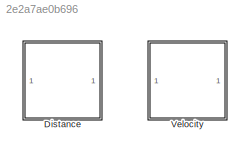
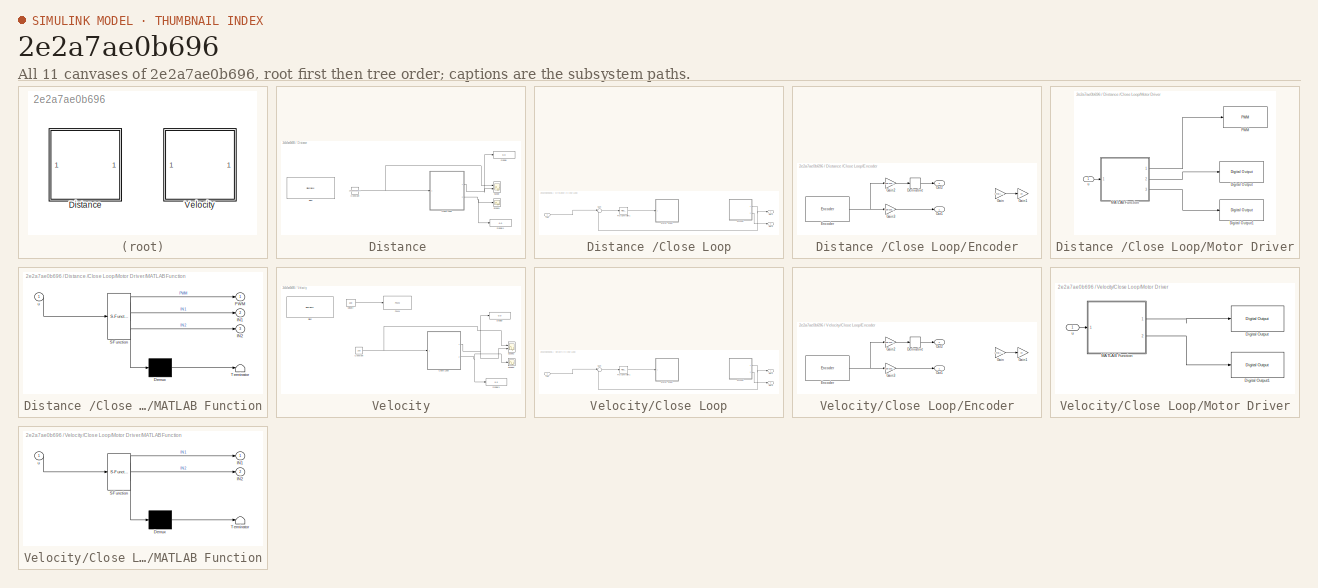
[diagram: thumbnail index - all 11 canvases of the model, root first then tree order]
MODEL slx_2e2a7ae0b696
KIND model
CONFIG AbsTol = auto
CONFIG EnableMultiTasking = on
CONFIG FixedStep = auto
CONFIG MaxStep = auto
CONFIG MinStep = auto
CONFIG RelTol = 1e-3
CONFIG SampleTimeConstraint = Unconstrained
CONFIG SolverName = FixedStepAuto
CONFIG StartTime = 0.0
CONFIG StopTime = 5
BLOCK [SubSystem] Distance 
  Ports = []
BLOCK [SubSystem] Distance /Close Loop
  Ports = [1, 2]
BLOCK [SubSystem] Distance /Close Loop/Encoder
  Ports = [0, 2]
BLOCK [Derivative] Distance /Close Loop/Encoder/Derivative
BLOCK [Reference] Distance /Close Loop/Encoder/Encoder  REF=arduinosensorlib/Encoder
  Ports = [0, 1]
  SourceBlock = arduinosensorlib/Encoder
  SourceType = Arduino Rotary Encoder
BLOCK [Gain] Distance /Close Loop/Encoder/Gain
  Commented = on
  Gain = (2*pi)/20
BLOCK [Gain] Distance /Close Loop/Encoder/Gain1
  Commented = on
  Gain = 34
BLOCK [Gain] Distance /Close Loop/Encoder/Gain2
  Gain = 228/103100000
  LockScale = on
  OutDataTypeStr = double
BLOCK [Gain] Distance /Close Loop/Encoder/Gain3
  Gain = 228/103100
BLOCK [Outport] Distance /Close Loop/Encoder/Out1
BLOCK [Outport] Distance /Close Loop/Encoder/Out2
  Port = 2
BLOCK [Inport] Distance /Close Loop/In1
BLOCK [SubSystem] Distance /Close Loop/Motor Driver
  Ports = [1]
BLOCK [Reference] Distance /Close Loop/Motor Driver/Digital Output  REF=arduinolib/Digital Output
  Ports = [1]
  SourceBlock = arduinolib/Digital Output
  SourceType = Arduino Digital Output
BLOCK [Reference] Distance /Close Loop/Motor Driver/Digital Output1  REF=arduinolib/Digital Output
  Ports = [1]
  SourceBlock = arduinolib/Digital Output
  SourceType = Arduino Digital Output
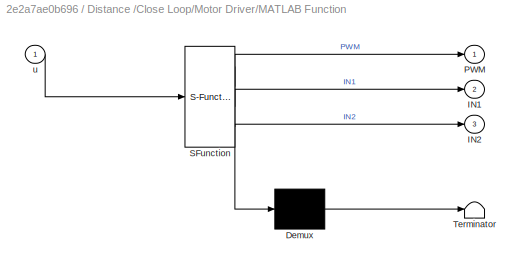
BLOCK [SubSystem] Distance /Close Loop/Motor Driver/MATLAB Function
  ErrorFcn = Stateflow.Translate.translate
  PermitHierarchicalResolution = ExplicitOnly
  Ports = [1, 3]
  SFBlockType = MATLAB Function
  TreatAsAtomicUnit = on
BLOCK [Demux] Distance /Close Loop/Motor Driver/MATLAB Function/ Demux 
  Outputs = 1
  Ports = [1, 1]
BLOCK [S-Function] Distance /Close Loop/Motor Driver/MATLAB Function/ SFunction 
  EnableBusSupport = on
  FunctionName = sf_sfun
  PortCounts = [1 4]
  Ports = [1, 4]
  SFcnIsStateOwnerBlock = off
  SFunctionDeploymentMode = off
  Tag = Stateflow S-Function 2
BLOCK [Terminator] Distance /Close Loop/Motor Driver/MATLAB Function/ Terminator 
BLOCK [Outport] Distance /Close Loop/Motor Driver/MATLAB Function/IN1
  Port = 2
BLOCK [Outport] Distance /Close Loop/Motor Driver/MATLAB Function/IN2
  Port = 3
BLOCK [Outport] Distance /Close Loop/Motor Driver/MATLAB Function/PWM
BLOCK [Inport] Distance /Close Loop/Motor Driver/MATLAB Function/u
BLOCK [Reference] Distance /Close Loop/Motor Driver/PWM  REF=arduinolib/PWM
  Ports = [1]
  SourceBlock = arduinolib/PWM
  SourceType = Arduino PWM
BLOCK [Inport] Distance /Close Loop/Motor Driver/u
BLOCK [Outport] Distance /Close Loop/Out1
BLOCK [Outport] Distance /Close Loop/Out2
  Port = 2
BLOCK [Reference] Distance /Close Loop/PID Controller1  REF=slpidlib/PID Controller
  Ports = [1, 1]
  SourceBlock = slpidlib/PID Controller
  SourceType = PID 1dof
BLOCK [Sum] Distance /Close Loop/Sum
  Inputs = |+-
  Ports = [2, 1]
BLOCK [Constant] Distance /Constant
  Value = 197.8655864122212
BLOCK [Display] Distance /Display
  Decimation = 1
  Ports = [1]
BLOCK [Display] Distance /Display1
  Decimation = 1
  Ports = [1]
BLOCK [Scope] Distance /Scope
  Floating = off
  NumInputPorts = 2
  Ports = [2]
  ScopeSpecificationString = Simulink.scopes.TimeScopeBlockCfg('CurrentConfiguration', extmgr.ConfigurationSet(extmgr.Configuration('Core','General UI',true,'FigureColor',[1 1 1]),extmgr.Configuration('Core','Source UI',true),extmgr.Configuration('Sources','WiredSimulink',true,'DataLoggingVariableName','scora1','DataLogging',true,'DataLoggingSaveFormat','StructureWithTime'),extmgr.Configuration('Visuals','Time Domain',true,'S...<+1891ch>
BLOCK [Scope] Distance /Scope1
  Floating = off
  NumInputPorts = 1
  Ports = [1]
  ScopeSpecificationString = Simulink.scopes.TimeScopeBlockCfg('CurrentConfiguration', extmgr.ConfigurationSet(extmgr.Configuration('Core','General UI',true,'FigureColor',[1 1 1]),extmgr.Configuration('Core','Source UI',true),extmgr.Configuration('Sources','WiredSimulink',true,'DataLoggingVariableName','ScopeData1'),extmgr.Configuration('Visuals','Time Domain',true,'SerializedDisplays',{struct('MinYLimReal','-0.01216','MaxYLi...<+1643ch>
BLOCK [SliderBlock] Distance /Slider
  ScaleMax = 228
BLOCK [SubSystem] Velocity
  Commented = on
  Ports = []
BLOCK [SubSystem] Velocity/Close Loop
  Ports = [1, 2]
BLOCK [SubSystem] Velocity/Close Loop/Encoder
  Ports = [0, 2]
BLOCK [Derivative] Velocity/Close Loop/Encoder/Derivative
BLOCK [Reference] Velocity/Close Loop/Encoder/Encoder  REF=arduinosensorlib/Encoder
  Ports = [0, 1]
  SourceBlock = arduinosensorlib/Encoder
  SourceType = Arduino Rotary Encoder
BLOCK [Gain] Velocity/Close Loop/Encoder/Gain
  Commented = on
  Gain = (2*pi)/20
BLOCK [Gain] Velocity/Close Loop/Encoder/Gain1
  Commented = on
  Gain = 34
BLOCK [Gain] Velocity/Close Loop/Encoder/Gain2
  Gain = 228/103100000
  LockScale = on
  OutDataTypeStr = double
BLOCK [Gain] Velocity/Close Loop/Encoder/Gain3
  Gain = 228/103100
BLOCK [Outport] Velocity/Close Loop/Encoder/Out1
BLOCK [Outport] Velocity/Close Loop/Encoder/Out2
  Port = 2
BLOCK [Inport] Velocity/Close Loop/In1
BLOCK [SubSystem] Velocity/Close Loop/Motor Driver
  Ports = [1]
BLOCK [Reference] Velocity/Close Loop/Motor Driver/Digital Output  REF=arduinolib/Digital Output
  Ports = [1]
  SourceBlock = arduinolib/Digital Output
  SourceType = Arduino Digital Output
BLOCK [Reference] Velocity/Close Loop/Motor Driver/Digital Output1  REF=arduinolib/Digital Output
  Ports = [1]
  SourceBlock = arduinolib/Digital Output
  SourceType = Arduino Digital Output
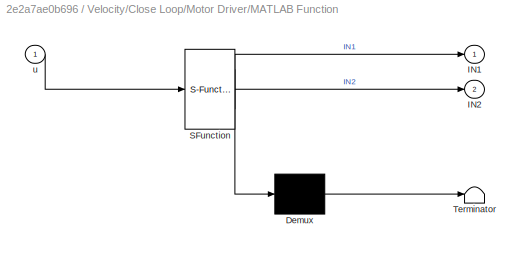
BLOCK [SubSystem] Velocity/Close Loop/Motor Driver/MATLAB Function
  ErrorFcn = Stateflow.Translate.translate
  PermitHierarchicalResolution = ExplicitOnly
  Ports = [1, 2]
  SFBlockType = MATLAB Function
  TreatAsAtomicUnit = on
BLOCK [Demux] Velocity/Close Loop/Motor Driver/MATLAB Function/ Demux 
  Outputs = 1
  Ports = [1, 1]
BLOCK [S-Function] Velocity/Close Loop/Motor Driver/MATLAB Function/ SFunction 
  EnableBusSupport = on
  FunctionName = sf_sfun
  PortCounts = [1 3]
  Ports = [1, 3]
  SFcnIsStateOwnerBlock = off
  SFunctionDeploymentMode = off
  Tag = Stateflow S-Function 1
BLOCK [Terminator] Velocity/Close Loop/Motor Driver/MATLAB Function/ Terminator 
BLOCK [Outport] Velocity/Close Loop/Motor Driver/MATLAB Function/IN1
BLOCK [Outport] Velocity/Close Loop/Motor Driver/MATLAB Function/IN2
  Port = 2
BLOCK [Inport] Velocity/Close Loop/Motor Driver/MATLAB Function/u
BLOCK [Inport] Velocity/Close Loop/Motor Driver/u
BLOCK [Outport] Velocity/Close Loop/Out1
BLOCK [Outport] Velocity/Close Loop/Out2
  Port = 2
BLOCK [Reference] Velocity/Close Loop/PID Controller1  REF=slpidlib/PID Controller
  Ports = [1, 1]
  SourceBlock = slpidlib/PID Controller
  SourceType = PID 1dof
BLOCK [Sum] Velocity/Close Loop/Sum
  Inputs = |+-
  Ports = [2, 1]
BLOCK [Constant] Velocity/Constant
  Value = 200
BLOCK [Display] Velocity/Display
  Decimation = 1
  Ports = [1]
BLOCK [Display] Velocity/Display1
  Decimation = 1
  Ports = [1]
BLOCK [Reference] Velocity/PWM  REF=arduinolib/PWM
  Ports = [1]
  SourceBlock = arduinolib/PWM
  SourceType = Arduino PWM
BLOCK [Scope] Velocity/Scope2
  Floating = off
  NumInputPorts = 2
  Ports = [2]
  ScopeSpecificationString = Simulink.scopes.TimeScopeBlockCfg('CurrentConfiguration', extmgr.ConfigurationSet(extmgr.Configuration('Core','General UI',true,'FigureColor',[1 1 1]),extmgr.Configuration('Core','Source UI',true),extmgr.Configuration('Sources','WiredSimulink',true,'DataLoggingVariableName','ScopeData1','DataLogging',true,'DataLoggingSaveFormat','StructureWithTime'),extmgr.Configuration('Visuals','Time Domain',tru...<+1883ch>
BLOCK [Scope] Velocity/Scope3
  Floating = off
  NumInputPorts = 1
  Ports = [1]
  ScopeSpecificationString = Simulink.scopes.TimeScopeBlockCfg('CurrentConfiguration', extmgr.ConfigurationSet(extmgr.Configuration('Core','General UI',true,'FigureColor',[1 1 1]),extmgr.Configuration('Core','Source UI',true),extmgr.Configuration('Sources','WiredSimulink',true,'DataLoggingVariableName','ScopeData2'),extmgr.Configuration('Visuals','Time Domain',true,'SerializedDisplays',{struct('MinYLimReal','-0.00277','MaxYLi...<+1643ch>
BLOCK [SliderBlock] Velocity/Slider
  ScaleMax = 255
BLOCK [Constant] Velocity/Velocity
  Value = 100
LINE Distance /Close Loop/Encoder/Derivative:1 -> Distance /Close Loop/Encoder/Out2:1
NET Distance /Close Loop/Encoder/Encoder:1 -> Distance /Close Loop/Encoder/Gain2:1, Distance /Close Loop/Encoder/Gain3:1
LINE Distance /Close Loop/Encoder/Gain2:1 -> Distance /Close Loop/Encoder/Derivative:1
LINE Distance /Close Loop/Encoder/Gain3:1 -> Distance /Close Loop/Encoder/Out1:1
LINE Distance /Close Loop/Encoder/Gain:1 -> Distance /Close Loop/Encoder/Gain1:1
NET Distance /Close Loop/Encoder:1 -> Distance /Close Loop/Out1:1, Distance /Close Loop/Sum:2
LINE Distance /Close Loop/Encoder:2 -> Distance /Close Loop/Out2:1
LINE Distance /Close Loop/In1:1 -> Distance /Close Loop/Sum:1
LINE Distance /Close Loop/Motor Driver/MATLAB Function:1 -> Distance /Close Loop/Motor Driver/PWM:1
LINE Distance /Close Loop/Motor Driver/MATLAB Function:2 -> Distance /Close Loop/Motor Driver/Digital Output:1
LINE Distance /Close Loop/Motor Driver/MATLAB Function:3 -> Distance /Close Loop/Motor Driver/Digital Output1:1
LINE Distance /Close Loop/Motor Driver/u:1 -> Distance /Close Loop/Motor Driver/MATLAB Function:1
LINE Distance /Close Loop/PID Controller1:1 -> Distance /Close Loop/Motor Driver:1
LINE Distance /Close Loop/Sum:1 -> Distance /Close Loop/PID Controller1:1
NET Distance /Close Loop:1 -> Distance /Display:1, Distance /Scope:2
NET Distance /Close Loop:2 -> Distance /Display1:1, Distance /Scope1:1
NET Distance /Constant:1 -> Distance /Close Loop:1, Distance /Scope:1
LINE Velocity/Close Loop/Encoder/Derivative:1 -> Velocity/Close Loop/Encoder/Out2:1
NET Velocity/Close Loop/Encoder/Encoder:1 -> Velocity/Close Loop/Encoder/Gain2:1, Velocity/Close Loop/Encoder/Gain3:1
LINE Velocity/Close Loop/Encoder/Gain2:1 -> Velocity/Close Loop/Encoder/Derivative:1
LINE Velocity/Close Loop/Encoder/Gain3:1 -> Velocity/Close Loop/Encoder/Out1:1
LINE Velocity/Close Loop/Encoder/Gain:1 -> Velocity/Close Loop/Encoder/Gain1:1
NET Velocity/Close Loop/Encoder:1 -> Velocity/Close Loop/Out1:1, Velocity/Close Loop/Sum:2
LINE Velocity/Close Loop/Encoder:2 -> Velocity/Close Loop/Out2:1
LINE Velocity/Close Loop/In1:1 -> Velocity/Close Loop/Sum:1
LINE Velocity/Close Loop/Motor Driver/MATLAB Function:1 -> Velocity/Close Loop/Motor Driver/Digital Output:1
LINE Velocity/Close Loop/Motor Driver/MATLAB Function:2 -> Velocity/Close Loop/Motor Driver/Digital Output1:1
LINE Velocity/Close Loop/Motor Driver/u:1 -> Velocity/Close Loop/Motor Driver/MATLAB Function:1
LINE Velocity/Close Loop/PID Controller1:1 -> Velocity/Close Loop/Motor Driver:1
LINE Velocity/Close Loop/Sum:1 -> Velocity/Close Loop/PID Controller1:1
NET Velocity/Close Loop:1 -> Velocity/Display:1, Velocity/Scope2:2
NET Velocity/Close Loop:2 -> Velocity/Display1:1, Velocity/Scope3:1
NET Velocity/Constant:1 -> Velocity/Close Loop:1, Velocity/Scope2:1
LINE Velocity/Velocity:1 -> Velocity/PWM:1
note: NET lines group one-source signal fan-out (src -> all destinations, sorted); 1:1 wires keep LINE
CHART Distance /Close Loop/Motor Driver/MATLAB Function states=1 transitions=1
  STATE_LABEL 'eML_blk_kernel()'
  STATE_LABEL 'SCRIPT:\n\nfunction [PWM,IN1,IN2] = fcn(u)\nPWM=abs(u);\nif u<0\n    IN1=1;IN2=0;\nelseif u>0\n    IN1=0;IN2=1;\nelse \n    IN1=0;IN2=0;\nend'
CHART Velocity/Close Loop/Motor Driver/MATLAB Function states=1 transitions=1
  STATE_LABEL 'eML_blk_kernel()'
  STATE_LABEL 'SCRIPT:\n\nfunction [IN1,IN2] = fcn(u)\n\nif u<0\n    IN1=1;IN2=0;\nelseif u>0\n    IN1=0;IN2=1;\nelse \n    IN1=0;IN2=0;\nend'
CHART  states=0 transitions=0
CHART  states=0 transitions=0
